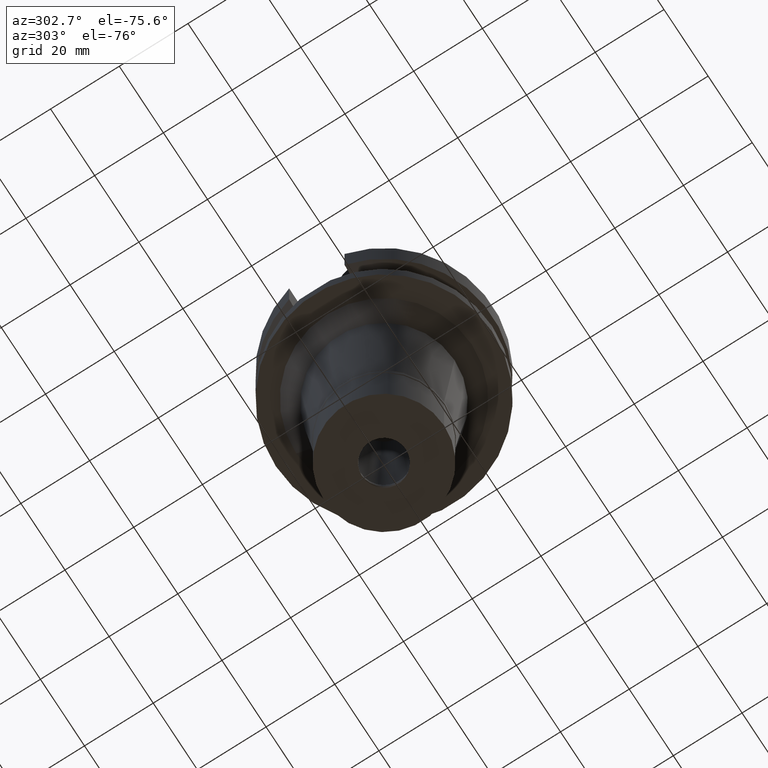
[diagram: clean part render]
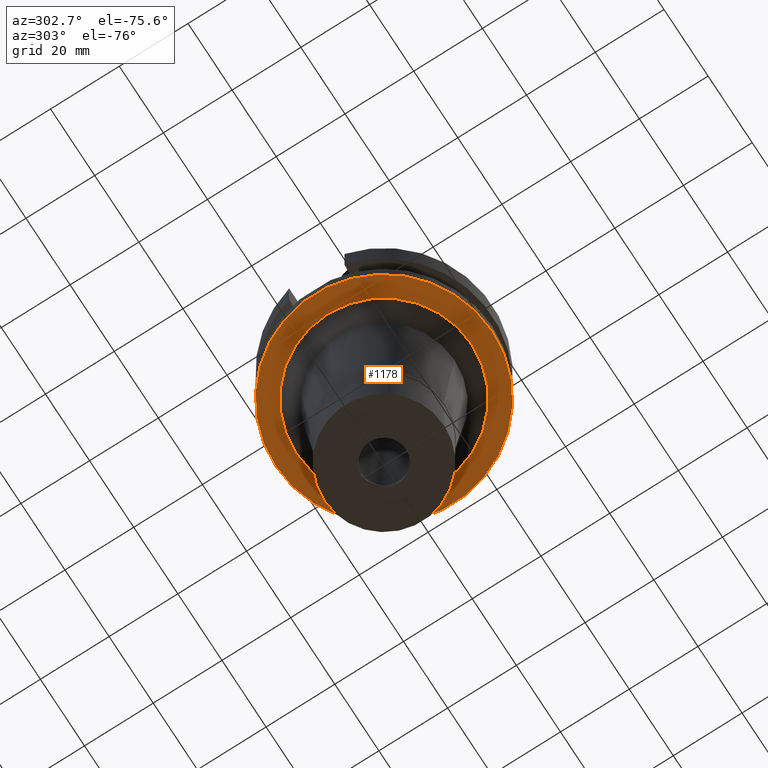
[diagram: same view with one face highlighted and labeled with its STEP entity id]
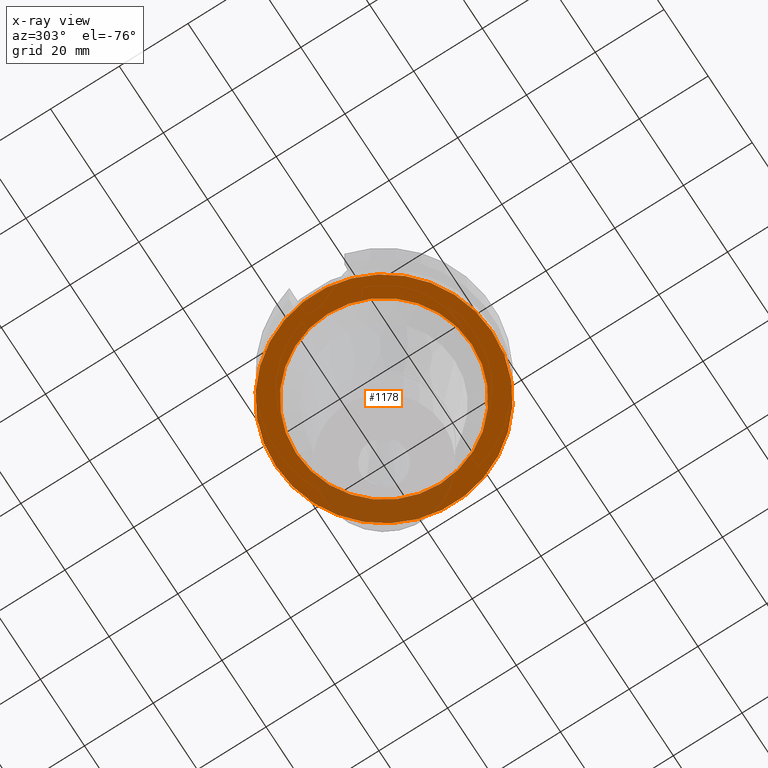
[diagram: x-ray of the same camera — body ghosted, the highlighted face saturated]
A machine part, auxiliary view. The second image highlights one B-rep face of the part: STEP entity #1178.
The next image is the same camera in x-ray: the body ghosted, the highlighted face saturated — about 18% of this face is hidden behind the body in this view.
In plain terms, the highlighted planar face has unit normal (0, 0, -1).
Its self-contained STEP definition (entity closure, byte-faithful):
#19 = EDGE_CURVE ( 'NONE', #1912, #2969, #3032, .T. ) ;
#239 = ORIENTED_EDGE ( 'NONE', *, *, #430, .F. ) ;
#420 = CARTESIAN_POINT ( 'NONE',  ( 0.0000000000000000000, -25.53585662435000003, -27.00000000000000000 ) ) ;
#430 = EDGE_CURVE ( 'NONE', #815, #1584, #2837, .T. ) ;
#436 = CIRCLE ( 'NONE', #789, 25.53585662435000003 ) ;
#453 = DIRECTION ( 'NONE',  ( 0.0000000000000000000, -1.000000000000000000, 0.0000000000000000000 ) ) ;
#501 = FACE_BOUND ( 'NONE', #2287, .T. ) ;
#513 = CARTESIAN_POINT ( 'NONE',  ( 0.0000000000000000000, 2.116618295306000150E-14, -27.00000000000000000 ) ) ;
#543 = ORIENTED_EDGE ( 'NONE', *, *, #2269, .F. ) ;
#566 = DIRECTION ( 'NONE',  ( 0.0000000000000000000, 0.0000000000000000000, -1.000000000000000000 ) ) ;
#649 = ORIENTED_EDGE ( 'NONE', *, *, #2049, .F. ) ;
#701 = DIRECTION ( 'NONE',  ( 0.0000000000000000000, 0.0000000000000000000, 1.000000000000000000 ) ) ;
#740 = CARTESIAN_POINT ( 'NONE',  ( 0.0000000000000000000, 0.0000000000000000000, -27.00000000000000000 ) ) ;
#780 = CARTESIAN_POINT ( 'NONE',  ( 0.0000000000000000000, 31.50000000000000000, -27.00000000000000000 ) ) ;
#789 = AXIS2_PLACEMENT_3D ( 'NONE', #3038, #2301, #2080 ) ;
#794 = AXIS2_PLACEMENT_3D ( 'NONE', #740, #566, #2242 ) ;
#803 = FACE_OUTER_BOUND ( 'NONE', #2994, .T. ) ;
#809 = DIRECTION ( 'NONE',  ( 0.0000000000000000000, 0.0000000000000000000, -1.000000000000000000 ) ) ;
#815 = VERTEX_POINT ( 'NONE', #1114 ) ;
#891 = AXIS2_PLACEMENT_3D ( 'NONE', #513, #1696, #2465 ) ;
#1114 = CARTESIAN_POINT ( 'NONE',  ( 0.0000000000000000000, -31.50000000000000000, -27.00000000000000000 ) ) ;
#1178 = ADVANCED_FACE ( 'NONE', ( #803, #501 ), #1999, .T. ) ;
#1336 = ORIENTED_EDGE ( 'NONE', *, *, #19, .F. ) ;
#1452 = AXIS2_PLACEMENT_3D ( 'NONE', #2933, #701, #453 ) ;
#1584 = VERTEX_POINT ( 'NONE', #780 ) ;
#1696 = DIRECTION ( 'NONE',  ( 0.0000000000000000000, 0.0000000000000000000, 1.000000000000000000 ) ) ;
#1912 = VERTEX_POINT ( 'NONE', #2723 ) ;
#1999 = PLANE ( 'NONE',  #794 ) ;
#2049 = EDGE_CURVE ( 'NONE', #1584, #815, #2375, .T. ) ;
#2080 = DIRECTION ( 'NONE',  ( 0.0000000000000000000, -1.000000000000000000, 0.0000000000000000000 ) ) ;
#2156 = AXIS2_PLACEMENT_3D ( 'NONE', #3019, #809, #2433 ) ;
#2242 = DIRECTION ( 'NONE',  ( 0.0000000000000000000, -1.000000000000000000, 0.0000000000000000000 ) ) ;
#2269 = EDGE_CURVE ( 'NONE', #2969, #1912, #436, .T. ) ;
#2287 = EDGE_LOOP ( 'NONE', ( #1336, #543 ) ) ;
#2301 = DIRECTION ( 'NONE',  ( 0.0000000000000000000, 0.0000000000000000000, -1.000000000000000000 ) ) ;
#2375 = CIRCLE ( 'NONE', #891, 31.50000000000000000 ) ;
#2433 = DIRECTION ( 'NONE',  ( 0.0000000000000000000, 1.000000000000000000, 0.0000000000000000000 ) ) ;
#2465 = DIRECTION ( 'NONE',  ( 0.0000000000000000000, 1.000000000000000000, 0.0000000000000000000 ) ) ;
#2723 = CARTESIAN_POINT ( 'NONE',  ( 0.0000000000000000000, 25.53585662435000003, -27.00000000000000000 ) ) ;
#2837 = CIRCLE ( 'NONE', #1452, 31.50000000000000000 ) ;
#2933 = CARTESIAN_POINT ( 'NONE',  ( 0.0000000000000000000, 2.116618295306000150E-14, -27.00000000000000000 ) ) ;
#2969 = VERTEX_POINT ( 'NONE', #420 ) ;
#2994 = EDGE_LOOP ( 'NONE', ( #649, #239 ) ) ;
#3019 = CARTESIAN_POINT ( 'NONE',  ( 0.0000000000000000000, 0.0000000000000000000, -27.00000000000000000 ) ) ;
#3032 = CIRCLE ( 'NONE', #2156, 25.53585662435000003 ) ;
#3038 = CARTESIAN_POINT ( 'NONE',  ( 0.0000000000000000000, 0.0000000000000000000, -27.00000000000000000 ) ) ;